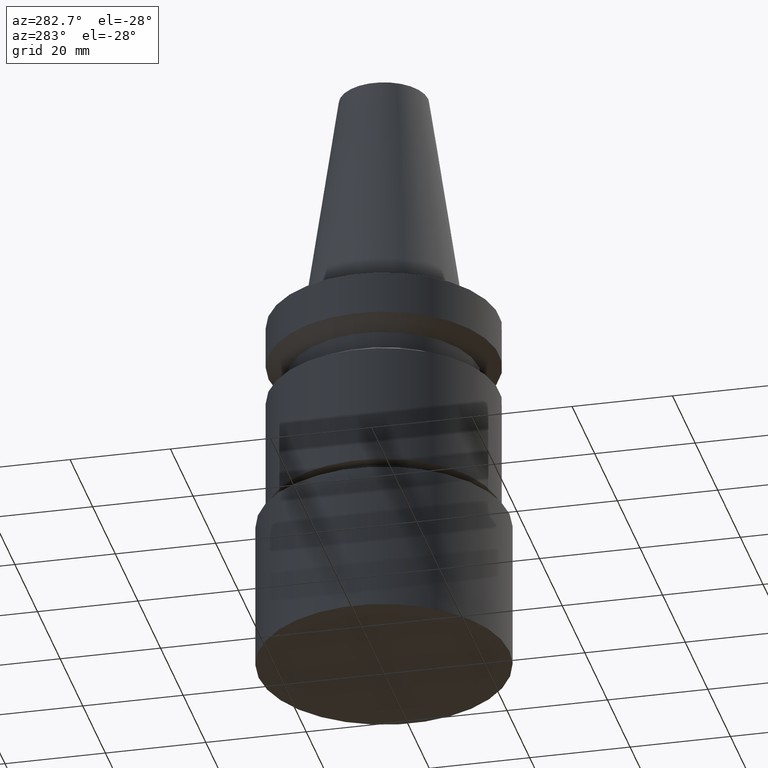
[diagram: clean part render]
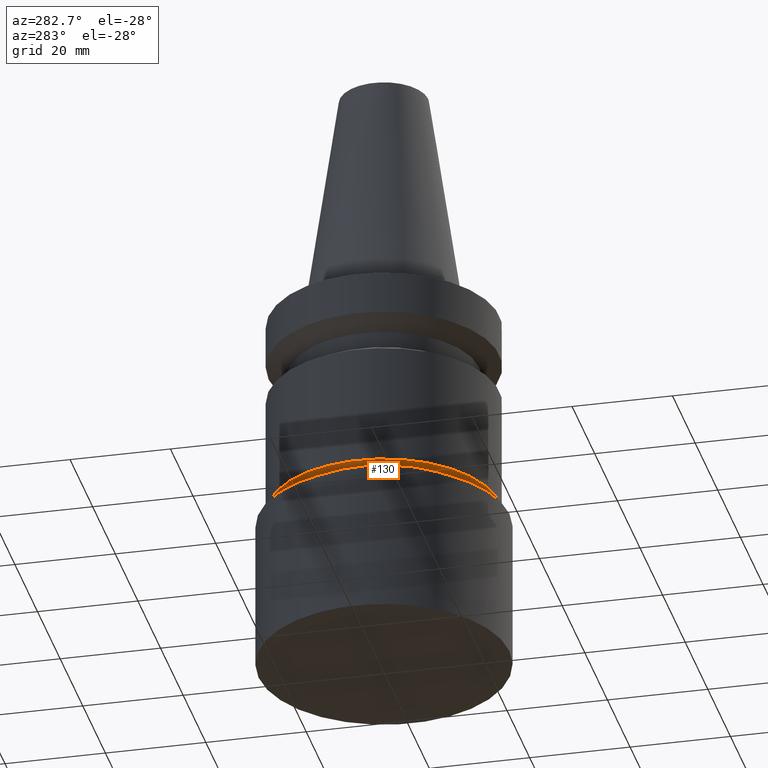
[diagram: same view with one face highlighted and labeled with its STEP entity id]
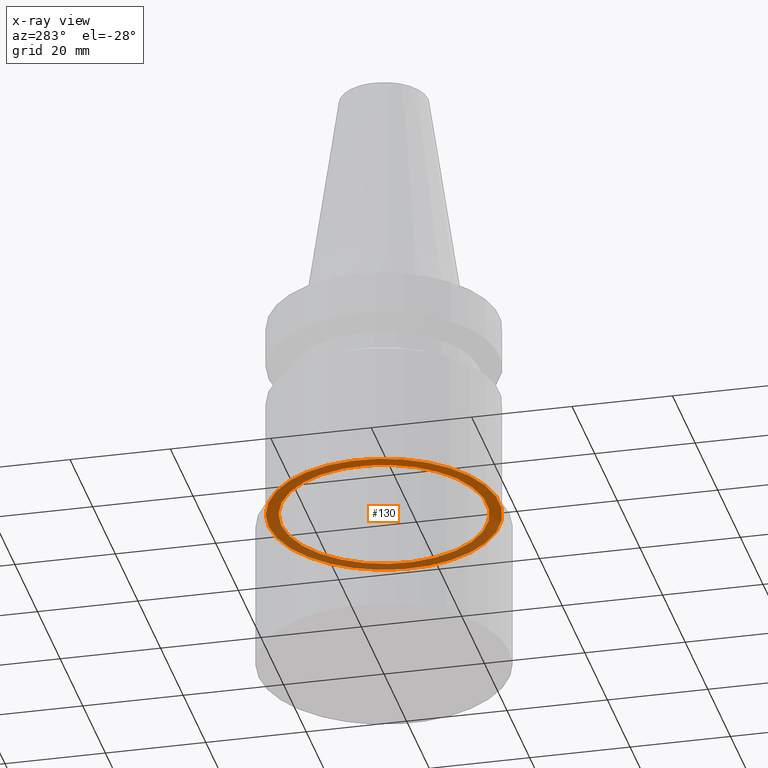
[diagram: x-ray of the same camera — body ghosted, the highlighted face saturated]
A machine part, auxiliary view. The second image highlights one B-rep face of the part: STEP entity #130.
The next image is the same camera in x-ray: the body ghosted, the highlighted face saturated — about 48% of this face is hidden behind the body in this view.
In plain terms, the highlighted planar face has unit normal (0, 0, -1).
Its self-contained STEP definition (entity closure, byte-faithful):
#92=EDGE_CURVE('Unnamed[1]',#216,#216,#217,.T.);
#130=ADVANCED_FACE('Unnamed[1]',(#276,#277),#278,.T.);
#143=EDGE_CURVE('Unnamed[1]',#295,#295,#296,.T.);
#216=VERTEX_POINT('',#377);
#217=CIRCLE('',#378,23.0);
#276=FACE_BOUND('',#452,.T.);
#277=FACE_OUTER_BOUND('',#453,.T.);
#278=PLANE('',#454);
#295=VERTEX_POINT('',#475);
#296=CIRCLE('',#476,20.4999999999911);
#377=CARTESIAN_POINT('',(2.57176792655277E-015,23.0,-42.0001575694042));
#378=AXIS2_PLACEMENT_3D('',#546,#547,#548);
#452=EDGE_LOOP('',(#613));
#453=EDGE_LOOP('',(#614));
#454=AXIS2_PLACEMENT_3D('',#615,#616,#617);
#475=CARTESIAN_POINT('',(2.57176792655278E-015,20.4999999999911,-42.0001575694044));
#476=AXIS2_PLACEMENT_3D('',#633,#634,#635);
#546=CARTESIAN_POINT('',(2.57176792655277E-015,5.14353585310553E-015,-42.0001575694042));
#547=DIRECTION('',(6.12323399573677E-017,1.22464679914735E-016,-1.0));
#548=DIRECTION('',(-1.23259516440783E-032,1.0,1.22464679914735E-016));
#613=ORIENTED_EDGE('',*,*,#143,.F.);
#614=ORIENTED_EDGE('',*,*,#92,.T.);
#615=CARTESIAN_POINT('',(2.57176792655277E-015,21.7499999999955,-42.0001575694043));
#616=DIRECTION('',(6.12323399573677E-017,6.83345673126412E-014,-1.0));
#617=DIRECTION('',(-4.18911260925804E-030,1.0,6.83345673126412E-014));
#633=CARTESIAN_POINT('',(2.57176792655278E-015,5.14353585310555E-015,-42.0001575694044));
#634=DIRECTION('',(6.12323399573677E-017,1.22464679914735E-016,-1.0));
#635=DIRECTION('',(-1.23259516440783E-032,1.0,1.22464679914735E-016));